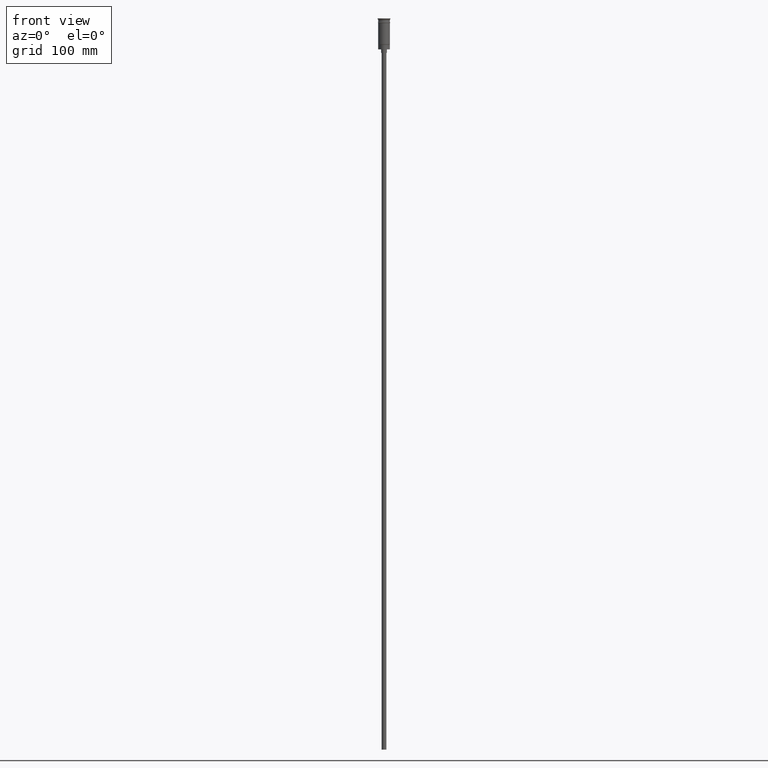
[diagram: clean part render]
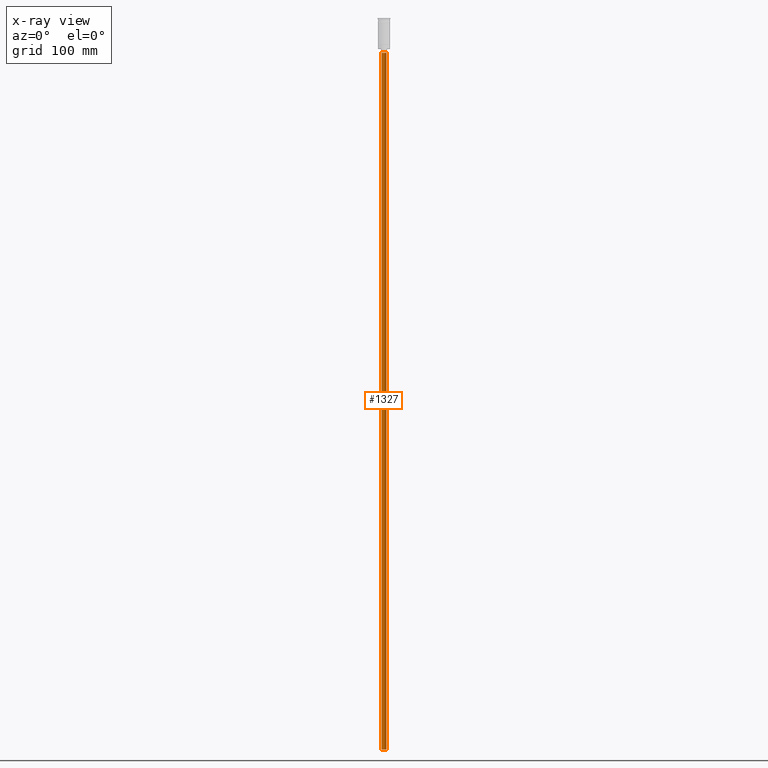
[diagram: x-ray — body ghosted, one internal face saturated and labeled with its STEP entity id]
A machine part, front view, then the same camera in x-ray: the body is ghosted and one INTERNAL B-rep face — a face not visible from any outside direction — is saturated and labeled: STEP entity #1327.
In plain terms, the highlighted cylindrical surface (edge-blend (fillet) strip) has radius 2 mm, axis along (-0, -0, 1).
Its self-contained STEP definition (entity closure, byte-faithful):
#10 = VERTEX_POINT ( 'NONE', #362 ) ;
#91 = CARTESIAN_POINT ( 'NONE',  ( -2.000000000000000000, 2.449293598294706414E-16, -626.5000000000000000 ) ) ;
#134 = EDGE_CURVE ( 'NONE', #1361, #1412, #1301, .T. ) ;
#192 = DIRECTION ( 'NONE',  ( -0.000000000000000000, -0.000000000000000000, 1.000000000000000000 ) ) ;
#208 = CARTESIAN_POINT ( 'NONE',  ( 2.000000000000000000, 0.000000000000000000, -29.50000000000000000 ) ) ;
#260 = CIRCLE ( 'NONE', #1261, 2.000000000000000000 ) ;
#293 = CARTESIAN_POINT ( 'NONE',  ( 0.000000000000000000, 0.000000000000000000, -626.5000000000000000 ) ) ;
#301 = DIRECTION ( 'NONE',  ( -0.000000000000000000, -0.000000000000000000, 1.000000000000000000 ) ) ;
#362 = CARTESIAN_POINT ( 'NONE',  ( -2.000000000000000000, 2.449293598294706414E-16, -626.5000000000000000 ) ) ;
#384 = CIRCLE ( 'NONE', #1422, 2.000000000000000000 ) ;
#411 = EDGE_CURVE ( 'NONE', #10, #1361, #260, .T. ) ;
#471 = EDGE_LOOP ( 'NONE', ( #1050, #950, #926, #1285 ) ) ;
#583 = VECTOR ( 'NONE', #192, 1000.000000000000000 ) ;
#669 = DIRECTION ( 'NONE',  ( -1.000000000000000000, 0.000000000000000000, 0.000000000000000000 ) ) ;
#720 = LINE ( 'NONE', #91, #851 ) ;
#778 = CARTESIAN_POINT ( 'NONE',  ( 2.000000000000000000, 0.000000000000000000, -626.5000000000000000 ) ) ;
#791 = DIRECTION ( 'NONE',  ( 1.000000000000000000, 0.000000000000000000, 0.000000000000000000 ) ) ;
#851 = VECTOR ( 'NONE', #1477, 1000.000000000000000 ) ;
#856 = CARTESIAN_POINT ( 'NONE',  ( 0.000000000000000000, 0.000000000000000000, -626.5000000000000000 ) ) ;
#865 = CARTESIAN_POINT ( 'NONE',  ( -2.000000000000000000, 2.449293598294706414E-16, -29.50000000000000000 ) ) ;
#911 = CYLINDRICAL_SURFACE ( 'NONE', #1555, 2.000000000000000000 ) ;
#926 = ORIENTED_EDGE ( 'NONE', *, *, #932, .T. ) ;
#932 = EDGE_CURVE ( 'NONE', #1569, #1412, #384, .T. ) ;
#950 = ORIENTED_EDGE ( 'NONE', *, *, #1045, .T. ) ;
#1028 = CARTESIAN_POINT ( 'NONE',  ( 0.000000000000000000, 0.000000000000000000, -29.50000000000000000 ) ) ;
#1045 = EDGE_CURVE ( 'NONE', #10, #1569, #720, .T. ) ;
#1050 = ORIENTED_EDGE ( 'NONE', *, *, #411, .F. ) ;
#1254 = DIRECTION ( 'NONE',  ( -1.000000000000000000, 0.000000000000000000, 0.000000000000000000 ) ) ;
#1261 = AXIS2_PLACEMENT_3D ( 'NONE', #856, #1275, #1254 ) ;
#1272 = CARTESIAN_POINT ( 'NONE',  ( 2.000000000000000000, 0.000000000000000000, -626.5000000000000000 ) ) ;
#1275 = DIRECTION ( 'NONE',  ( 0.000000000000000000, 0.000000000000000000, -1.000000000000000000 ) ) ;
#1285 = ORIENTED_EDGE ( 'NONE', *, *, #134, .F. ) ;
#1301 = LINE ( 'NONE', #778, #583 ) ;
#1327 = ADVANCED_FACE ( 'NONE', ( #1540 ), #911, .T. ) ;
#1361 = VERTEX_POINT ( 'NONE', #1272 ) ;
#1412 = VERTEX_POINT ( 'NONE', #208 ) ;
#1422 = AXIS2_PLACEMENT_3D ( 'NONE', #1028, #1427, #669 ) ;
#1427 = DIRECTION ( 'NONE',  ( 0.000000000000000000, 0.000000000000000000, -1.000000000000000000 ) ) ;
#1477 = DIRECTION ( 'NONE',  ( -0.000000000000000000, -0.000000000000000000, 1.000000000000000000 ) ) ;
#1540 = FACE_OUTER_BOUND ( 'NONE', #471, .T. ) ;
#1555 = AXIS2_PLACEMENT_3D ( 'NONE', #293, #301, #791 ) ;
#1569 = VERTEX_POINT ( 'NONE', #865 ) ;